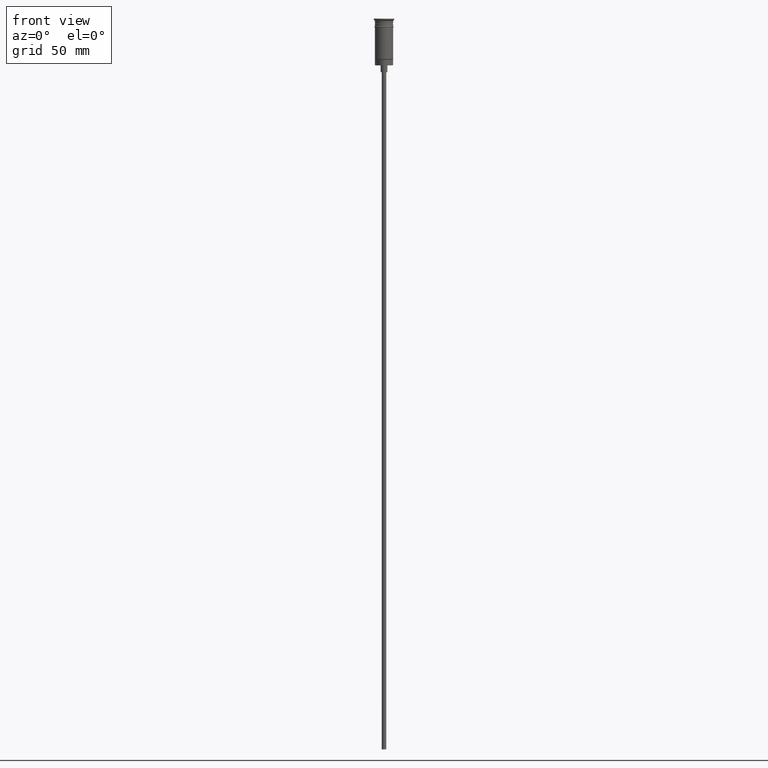
[diagram: clean part render]
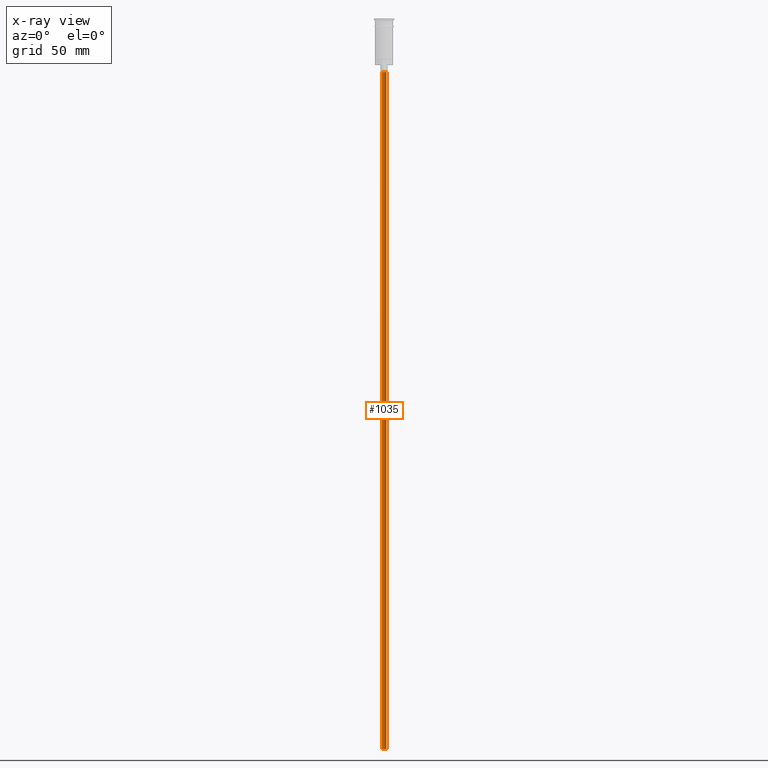
[diagram: x-ray — body ghosted, one internal face saturated and labeled with its STEP entity id]
A machine part, front view, then the same camera in x-ray: the body is ghosted and one INTERNAL B-rep face — a face not visible from any outside direction — is saturated and labeled: STEP entity #1035.
In plain terms, the highlighted cylindrical surface (edge-blend (fillet) strip) has radius 1 mm, axis along (-0, -0, 1).
Its self-contained STEP definition (entity closure, byte-faithful):
#31 = DIRECTION ( 'NONE',  ( -0.000000000000000000, -0.000000000000000000, 1.000000000000000000 ) ) ;
#101 = AXIS2_PLACEMENT_3D ( 'NONE', #981, #995, #128 ) ;
#128 = DIRECTION ( 'NONE',  ( -1.000000000000000000, 0.000000000000000000, 0.000000000000000000 ) ) ;
#133 = EDGE_LOOP ( 'NONE', ( #153, #1594, #639, #251 ) ) ;
#153 = ORIENTED_EDGE ( 'NONE', *, *, #1590, .F. ) ;
#170 = CARTESIAN_POINT ( 'NONE',  ( 0.9999999999999997780, 0.000000000000000000, -23.49999999999999645 ) ) ;
#215 = VERTEX_POINT ( 'NONE', #1177 ) ;
#251 = ORIENTED_EDGE ( 'NONE', *, *, #1522, .F. ) ;
#290 = CARTESIAN_POINT ( 'NONE',  ( -0.9999999999999997780, 1.224646799147352961E-16, -320.5000000000000000 ) ) ;
#325 = FACE_OUTER_BOUND ( 'NONE', #133, .T. ) ;
#342 = EDGE_CURVE ( 'NONE', #888, #444, #435, .T. ) ;
#396 = DIRECTION ( 'NONE',  ( -1.000000000000000000, 0.000000000000000000, 0.000000000000000000 ) ) ;
#412 = CARTESIAN_POINT ( 'NONE',  ( -0.9999999999999997780, 1.224646799147352961E-16, -23.49999999999999645 ) ) ;
#435 = CIRCLE ( 'NONE', #101, 0.9999999999999997780 ) ;
#444 = VERTEX_POINT ( 'NONE', #170 ) ;
#459 = LINE ( 'NONE', #1329, #1391 ) ;
#607 = DIRECTION ( 'NONE',  ( 1.000000000000000000, 0.000000000000000000, 0.000000000000000000 ) ) ;
#619 = CYLINDRICAL_SURFACE ( 'NONE', #1283, 0.9999999999999997780 ) ;
#626 = DIRECTION ( 'NONE',  ( -0.000000000000000000, -0.000000000000000000, 1.000000000000000000 ) ) ;
#639 = ORIENTED_EDGE ( 'NONE', *, *, #342, .T. ) ;
#652 = CARTESIAN_POINT ( 'NONE',  ( 0.000000000000000000, 0.000000000000000000, -320.5000000000000000 ) ) ;
#755 = DIRECTION ( 'NONE',  ( 0.000000000000000000, 0.000000000000000000, -1.000000000000000000 ) ) ;
#771 = CARTESIAN_POINT ( 'NONE',  ( -0.9999999999999997780, 1.224646799147352961E-16, -320.5000000000000000 ) ) ;
#888 = VERTEX_POINT ( 'NONE', #412 ) ;
#981 = CARTESIAN_POINT ( 'NONE',  ( 0.000000000000000000, 0.000000000000000000, -23.49999999999999645 ) ) ;
#995 = DIRECTION ( 'NONE',  ( 0.000000000000000000, 0.000000000000000000, -1.000000000000000000 ) ) ;
#1035 = ADVANCED_FACE ( 'NONE', ( #325 ), #619, .T. ) ;
#1036 = AXIS2_PLACEMENT_3D ( 'NONE', #652, #755, #396 ) ;
#1143 = LINE ( 'NONE', #771, #1603 ) ;
#1177 = CARTESIAN_POINT ( 'NONE',  ( 0.9999999999999997780, 0.000000000000000000, -320.5000000000000000 ) ) ;
#1253 = VERTEX_POINT ( 'NONE', #290 ) ;
#1283 = AXIS2_PLACEMENT_3D ( 'NONE', #1508, #626, #607 ) ;
#1329 = CARTESIAN_POINT ( 'NONE',  ( 0.9999999999999997780, 0.000000000000000000, -320.5000000000000000 ) ) ;
#1391 = VECTOR ( 'NONE', #1493, 1000.000000000000000 ) ;
#1493 = DIRECTION ( 'NONE',  ( -0.000000000000000000, -0.000000000000000000, 1.000000000000000000 ) ) ;
#1508 = CARTESIAN_POINT ( 'NONE',  ( 0.000000000000000000, 0.000000000000000000, -320.5000000000000000 ) ) ;
#1522 = EDGE_CURVE ( 'NONE', #215, #444, #459, .T. ) ;
#1529 = CIRCLE ( 'NONE', #1036, 0.9999999999999997780 ) ;
#1555 = EDGE_CURVE ( 'NONE', #1253, #888, #1143, .T. ) ;
#1590 = EDGE_CURVE ( 'NONE', #1253, #215, #1529, .T. ) ;
#1594 = ORIENTED_EDGE ( 'NONE', *, *, #1555, .T. ) ;
#1603 = VECTOR ( 'NONE', #31, 1000.000000000000000 ) ;